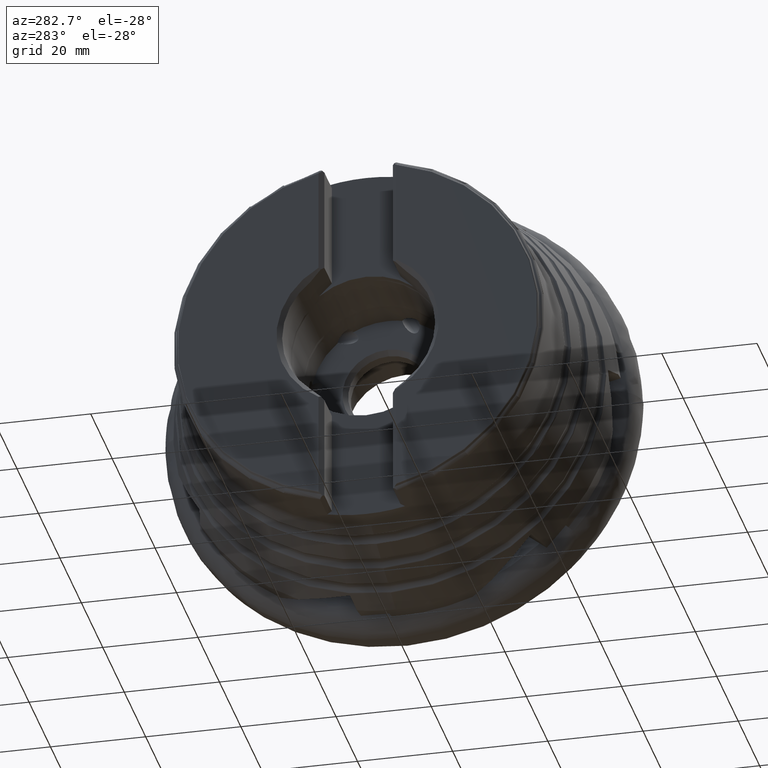
[diagram: clean part render]
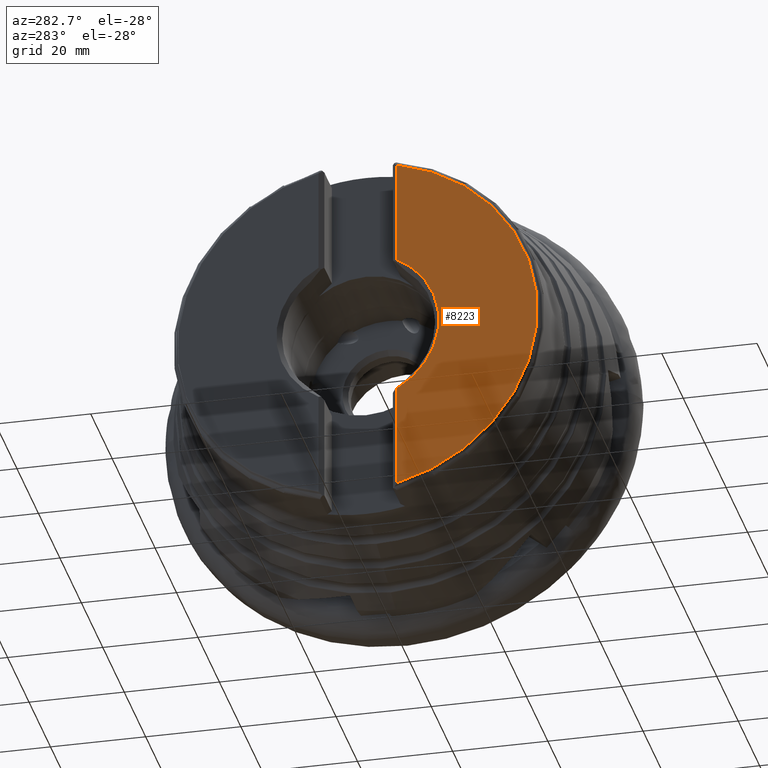
[diagram: same view with one face highlighted and labeled with its STEP entity id]
A machine part, auxiliary view. The second image highlights one B-rep face of the part: STEP entity #8223.
In plain terms, the highlighted planar face has unit normal (-1, 0, 0).
Its self-contained STEP definition (entity closure, byte-faithful):
#511 = DIRECTION ( 'NONE',  ( -1.000000000000000000, 0.0000000000000000000, 0.0000000000000000000 ) ) ;
#550 = CARTESIAN_POINT ( 'NONE',  ( -48.70000000000000300, -8.200000000000011700, -36.88962049140651100 ) ) ;
#1147 = LINE ( 'NONE', #2588, #9237 ) ;
#1188 = CIRCLE ( 'NONE', #9965, 37.78999999999999200 ) ;
#1290 = DIRECTION ( 'NONE',  ( 1.000000000000000000, -0.0000000000000000000, -0.0000000000000000000 ) ) ;
#1510 = EDGE_CURVE ( 'NONE', #9283, #3099, #1188, .T. ) ;
#1635 = PLANE ( 'NONE',  #5836 ) ;
#1829 = CARTESIAN_POINT ( 'NONE',  ( -48.70000000000001000, 0.0000000000000000000, 0.0000000000000000000 ) ) ;
#2473 = CARTESIAN_POINT ( 'NONE',  ( -48.70000000000000300, -8.200000000000011700, -54.99999999999999300 ) ) ;
#2588 = CARTESIAN_POINT ( 'NONE',  ( -48.70000000000000300, -8.200000000000011700, -54.99999999999999300 ) ) ;
#2638 = AXIS2_PLACEMENT_3D ( 'NONE', #3720, #1290, #2913 ) ;
#2875 = ORIENTED_EDGE ( 'NONE', *, *, #10968, .F. ) ;
#2913 = DIRECTION ( 'NONE',  ( 0.0000000000000000000, 0.0000000000000000000, -1.000000000000000000 ) ) ;
#3099 = VERTEX_POINT ( 'NONE', #550 ) ;
#3439 = ORIENTED_EDGE ( 'NONE', *, *, #9276, .F. ) ;
#3465 = CARTESIAN_POINT ( 'NONE',  ( -48.70000000000000300, -8.200000000000011700, 36.88962049140651100 ) ) ;
#3551 = DIRECTION ( 'NONE',  ( 0.0000000000000000000, 0.0000000000000000000, -1.000000000000000000 ) ) ;
#3720 = CARTESIAN_POINT ( 'NONE',  ( -48.69999999999999600, 0.0000000000000000000, 0.0000000000000000000 ) ) ;
#4361 = CARTESIAN_POINT ( 'NONE',  ( -48.70000000000000300, -8.200000000000011700, 14.97717012656262100 ) ) ;
#4516 = FACE_OUTER_BOUND ( 'NONE', #9845, .T. ) ;
#5802 = ORIENTED_EDGE ( 'NONE', *, *, #10057, .T. ) ;
#5836 = AXIS2_PLACEMENT_3D ( 'NONE', #6412, #511, #5853 ) ;
#5853 = DIRECTION ( 'NONE',  ( 0.0000000000000000000, 0.0000000000000000000, 1.000000000000000000 ) ) ;
#6093 = DIRECTION ( 'NONE',  ( -0.0000000000000000000, -0.0000000000000000000, 1.000000000000000000 ) ) ;
#6104 = ORIENTED_EDGE ( 'NONE', *, *, #1510, .F. ) ;
#6130 = VECTOR ( 'NONE', #9155, 1000.000000000000000 ) ;
#6412 = CARTESIAN_POINT ( 'NONE',  ( -48.70000000000000300, 37.78999999999999200, 0.0000000000000000000 ) ) ;
#7782 = DIRECTION ( 'NONE',  ( 1.000000000000000000, -0.0000000000000000000, -0.0000000000000000000 ) ) ;
#8223 = ADVANCED_FACE ( 'NONE', ( #4516 ), #1635, .T. ) ;
#8547 = LINE ( 'NONE', #2473, #6130 ) ;
#9048 = CIRCLE ( 'NONE', #2638, 17.07499999999999200 ) ;
#9155 = DIRECTION ( 'NONE',  ( -0.0000000000000000000, -0.0000000000000000000, 1.000000000000000000 ) ) ;
#9237 = VECTOR ( 'NONE', #6093, 1000.000000000000000 ) ;
#9276 = EDGE_CURVE ( 'NONE', #3099, #9821, #8547, .T. ) ;
#9283 = VERTEX_POINT ( 'NONE', #3465 ) ;
#9821 = VERTEX_POINT ( 'NONE', #10412 ) ;
#9845 = EDGE_LOOP ( 'NONE', ( #3439, #6104, #2875, #5802 ) ) ;
#9923 = VERTEX_POINT ( 'NONE', #4361 ) ;
#9965 = AXIS2_PLACEMENT_3D ( 'NONE', #1829, #7782, #3551 ) ;
#10057 = EDGE_CURVE ( 'NONE', #9923, #9821, #9048, .T. ) ;
#10412 = CARTESIAN_POINT ( 'NONE',  ( -48.70000000000000300, -8.200000000000011700, -14.97717012656262100 ) ) ;
#10968 = EDGE_CURVE ( 'NONE', #9923, #9283, #1147, .T. ) ;